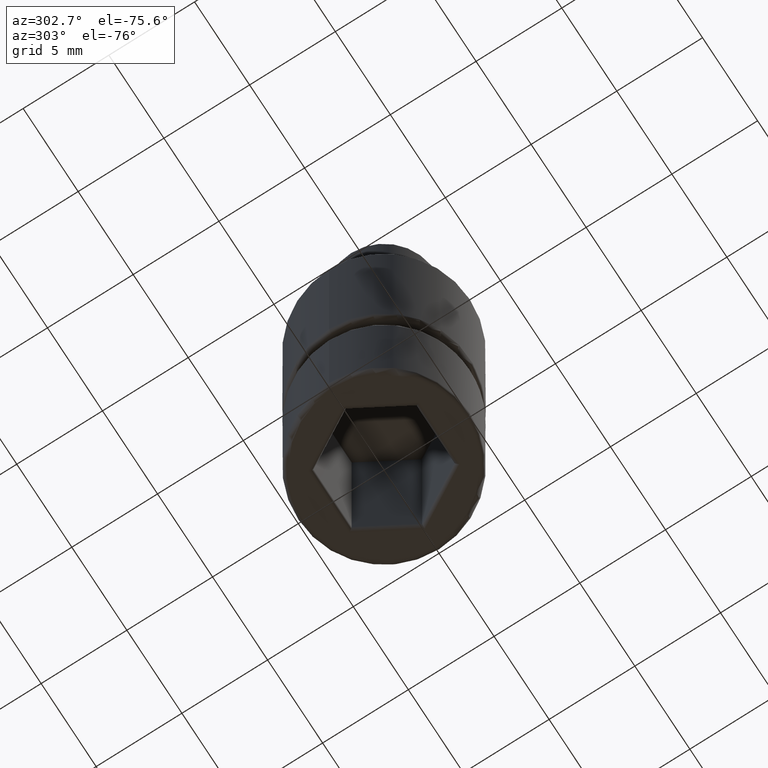
[diagram: clean part render]
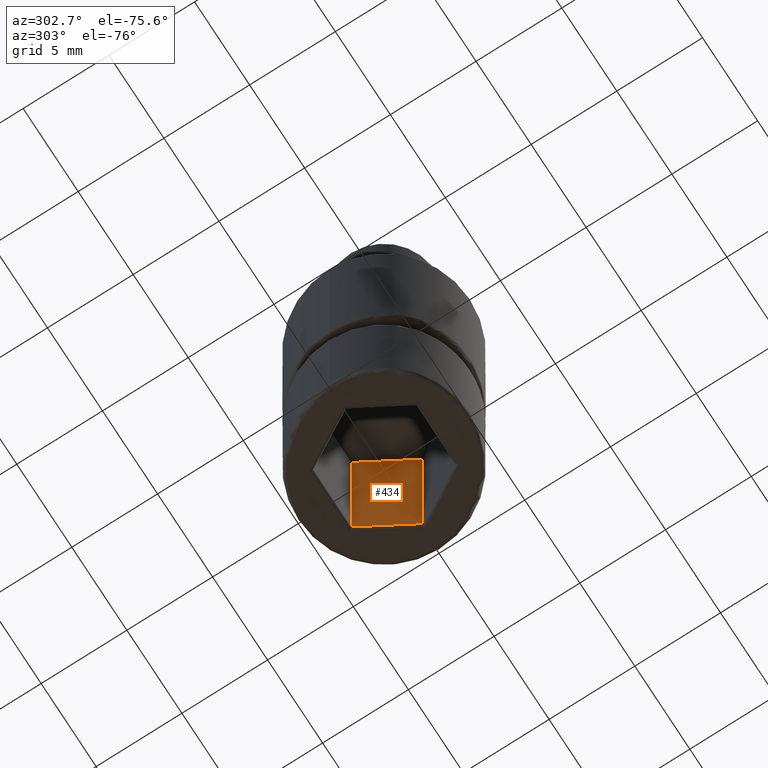
[diagram: same view with one face highlighted and labeled with its STEP entity id]
A machine part, auxiliary view. The second image highlights one B-rep face of the part: STEP entity #434.
In plain terms, the highlighted planar face has unit normal (0.866, 0.5, 0).
Its self-contained STEP definition (entity closure, byte-faithful):
#56=PLANE('',#504);
#79=FACE_OUTER_BOUND('',#109,.T.);
#109=EDGE_LOOP('',(#362,#363,#364,#365));
#129=LINE('',#687,#158);
#143=LINE('',#721,#172);
#148=LINE('',#768,#177);
#149=LINE('',#769,#178);
#158=VECTOR('',#538,10.);
#172=VECTOR('',#572,10.);
#177=VECTOR('',#629,10.);
#178=VECTOR('',#630,10.);
#186=VERTEX_POINT('',#677);
#189=VERTEX_POINT('',#685);
#199=VERTEX_POINT('',#720);
#215=VERTEX_POINT('',#767);
#230=EDGE_CURVE('',#189,#186,#129,.T.);
#247=EDGE_CURVE('',#186,#199,#143,.T.);
#269=EDGE_CURVE('',#189,#215,#148,.T.);
#270=EDGE_CURVE('',#215,#199,#149,.T.);
#362=ORIENTED_EDGE('',*,*,#230,.F.);
#363=ORIENTED_EDGE('',*,*,#269,.T.);
#364=ORIENTED_EDGE('',*,*,#270,.T.);
#365=ORIENTED_EDGE('',*,*,#247,.F.);
#434=ADVANCED_FACE('',(#79),#56,.F.);
#504=AXIS2_PLACEMENT_3D('',#766,#627,#628);
#538=DIRECTION('',(-0.5,0.866025403784438,0.));
#572=DIRECTION('',(0.,0.,1.));
#627=DIRECTION('center_axis',(0.866025403784438,0.5,0.));
#628=DIRECTION('ref_axis',(-0.5,0.866025403784438,0.));
#629=DIRECTION('',(0.,0.,1.));
#630=DIRECTION('',(-0.5,0.866025403784438,0.));
#677=CARTESIAN_POINT('',(1.73205080756888,3.,-11.2));
#685=CARTESIAN_POINT('',(3.46410161513776,1.87218224579041E-15,-11.2));
#687=CARTESIAN_POINT('',(3.03108891324554,0.750000000000002,-11.2));
#720=CARTESIAN_POINT('',(1.73205080756888,3.,1.5));
#721=CARTESIAN_POINT('',(1.73205080756888,3.,-11.5));
#766=CARTESIAN_POINT('Origin',(3.46410161513776,1.87218224579041E-15,-11.5));
#767=CARTESIAN_POINT('',(3.46410161513776,1.87218224579041E-15,1.5));
#768=CARTESIAN_POINT('',(3.46410161513776,1.87218224579041E-15,-11.5));
#769=CARTESIAN_POINT('',(3.46410161513776,1.87218224579041E-15,1.5));